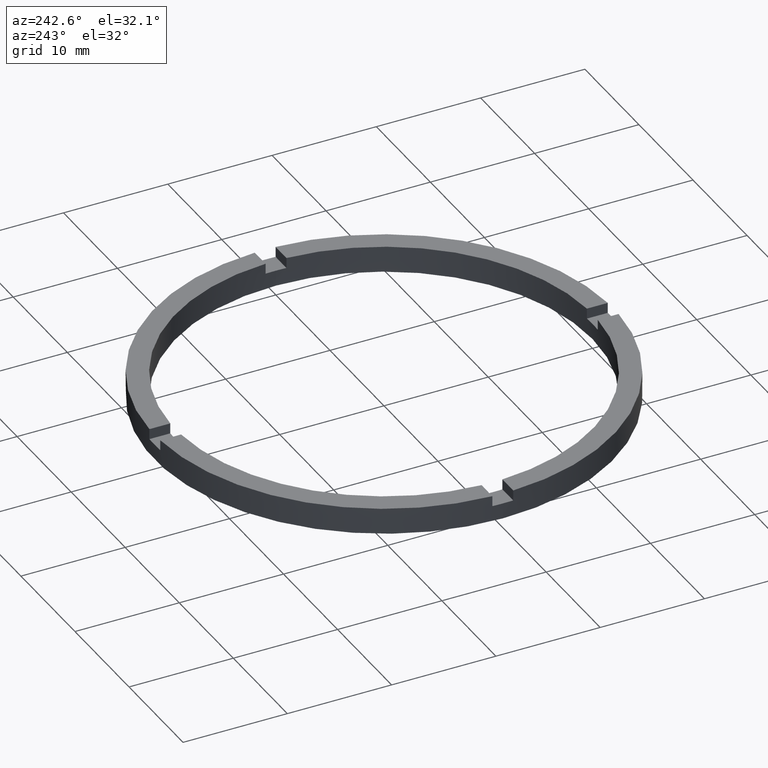
[diagram: clean part render]
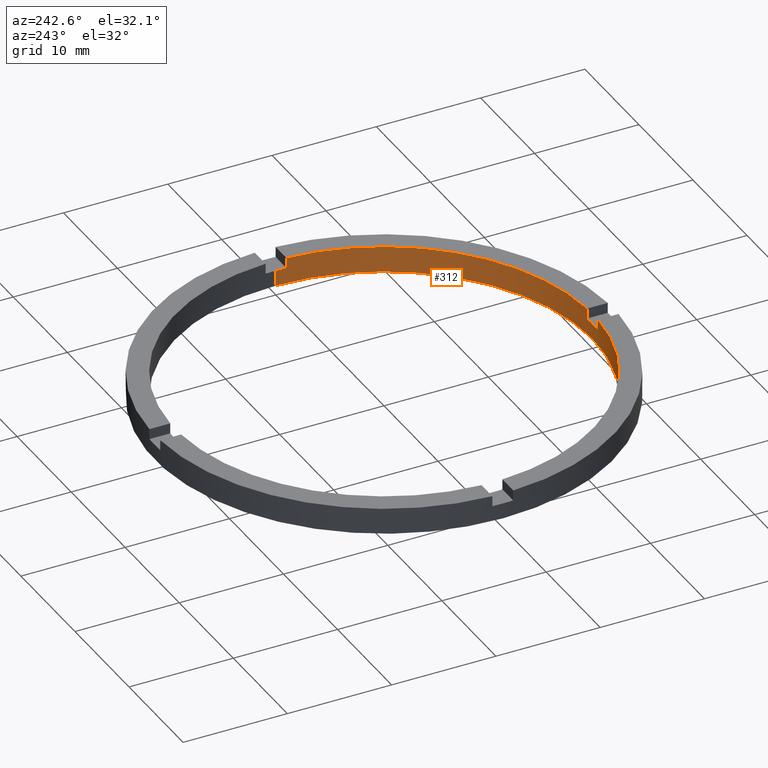
[diagram: same view with one face highlighted and labeled with its STEP entity id]
A machine part, auxiliary view. The second image highlights one B-rep face of the part: STEP entity #312.
In plain terms, the highlighted cylindrical surface (partial cylindrical patch) has radius 20 mm, axis along (-0, -0, -1).
Its self-contained STEP definition (entity closure, byte-faithful):
#16 = DIRECTION ( 'NONE',  ( 1.000000000000000000, 0.000000000000000000, 0.000000000000000000 ) ) ;
#19 = CARTESIAN_POINT ( 'NONE',  ( -1.000000000000161648, -19.97498435543817052, 2.500000000000000000 ) ) ;
#21 = CARTESIAN_POINT ( 'NONE',  ( 20.00000000000000000, 2.449293598294706513E-15, 1.500000000000000000 ) ) ;
#25 = CARTESIAN_POINT ( 'NONE',  ( 0.9999999999998384625, -19.97498435543818829, 1.500000000000000000 ) ) ;
#30 = AXIS2_PLACEMENT_3D ( 'NONE', #77, #321, #422 ) ;
#35 = EDGE_CURVE ( 'NONE', #464, #44, #719, .T. ) ;
#36 = LINE ( 'NONE', #280, #40 ) ;
#40 = VECTOR ( 'NONE', #569, 1000.000000000000000 ) ;
#42 = LINE ( 'NONE', #337, #320 ) ;
#44 = VERTEX_POINT ( 'NONE', #663 ) ;
#65 = VECTOR ( 'NONE', #662, 1000.000000000000000 ) ;
#77 = CARTESIAN_POINT ( 'NONE',  ( 0.000000000000000000, 0.000000000000000000, 2.500000000000000000 ) ) ;
#82 = CARTESIAN_POINT ( 'NONE',  ( 0.000000000000000000, 0.000000000000000000, 1.500000000000000000 ) ) ;
#88 = CARTESIAN_POINT ( 'NONE',  ( 0.000000000000000000, 0.000000000000000000, 1.500000000000000000 ) ) ;
#92 = AXIS2_PLACEMENT_3D ( 'NONE', #297, #105, #696 ) ;
#94 = CARTESIAN_POINT ( 'NONE',  ( -20.00000000000000000, 0.000000000000000000, 1.500000000000000000 ) ) ;
#95 = DIRECTION ( 'NONE',  ( 1.000000000000000000, 0.000000000000000000, 0.000000000000000000 ) ) ;
#98 = CARTESIAN_POINT ( 'NONE',  ( 0.000000000000000000, 0.000000000000000000, 1.500000000000000000 ) ) ;
#105 = DIRECTION ( 'NONE',  ( 0.000000000000000000, 0.000000000000000000, 1.000000000000000000 ) ) ;
#110 = CARTESIAN_POINT ( 'NONE',  ( 0.9999999999998384625, -19.97498435543818829, 2.500000000000000000 ) ) ;
#114 = AXIS2_PLACEMENT_3D ( 'NONE', #98, #625, #522 ) ;
#129 = EDGE_CURVE ( 'NONE', #430, #186, #235, .T. ) ;
#137 = EDGE_CURVE ( 'NONE', #504, #435, #479, .T. ) ;
#141 = CARTESIAN_POINT ( 'NONE',  ( 19.97498435543817408, -1.000000000000158096, 2.500000000000000000 ) ) ;
#144 = EDGE_CURVE ( 'NONE', #504, #181, #724, .T. ) ;
#145 = DIRECTION ( 'NONE',  ( -0.000000000000000000, -0.000000000000000000, -1.000000000000000000 ) ) ;
#160 = ORIENTED_EDGE ( 'NONE', *, *, #137, .T. ) ;
#173 = ORIENTED_EDGE ( 'NONE', *, *, #259, .T. ) ;
#175 = ORIENTED_EDGE ( 'NONE', *, *, #434, .F. ) ;
#181 = VERTEX_POINT ( 'NONE', #141 ) ;
#186 = VERTEX_POINT ( 'NONE', #357 ) ;
#193 = EDGE_CURVE ( 'NONE', #692, #186, #738, .T. ) ;
#194 = ORIENTED_EDGE ( 'NONE', *, *, #129, .T. ) ;
#195 = EDGE_LOOP ( 'NONE', ( #160, #698, #687, #440, #194, #727, #173, #175, #721, #743, #470, #702 ) ) ;
#196 = DIRECTION ( 'NONE',  ( 0.000000000000000000, 0.000000000000000000, 1.000000000000000000 ) ) ;
#206 = VECTOR ( 'NONE', #544, 1000.000000000000000 ) ;
#235 = CIRCLE ( 'NONE', #765, 20.00000000000000000 ) ;
#236 = CARTESIAN_POINT ( 'NONE',  ( -20.00000000000000000, 0.000000000000000000, 0.000000000000000000 ) ) ;
#240 = CYLINDRICAL_SURFACE ( 'NONE', #304, 20.00000000000000000 ) ;
#245 = FACE_OUTER_BOUND ( 'NONE', #195, .T. ) ;
#247 = VECTOR ( 'NONE', #250, 1000.000000000000000 ) ;
#250 = DIRECTION ( 'NONE',  ( -0.000000000000000000, -0.000000000000000000, -1.000000000000000000 ) ) ;
#253 = CARTESIAN_POINT ( 'NONE',  ( 0.000000000000000000, 0.000000000000000000, 2.500000000000000000 ) ) ;
#259 = EDGE_CURVE ( 'NONE', #692, #455, #505, .T. ) ;
#272 = AXIS2_PLACEMENT_3D ( 'NONE', #88, #196, #274 ) ;
#274 = DIRECTION ( 'NONE',  ( 1.000000000000000000, 0.000000000000000000, 0.000000000000000000 ) ) ;
#279 = EDGE_CURVE ( 'NONE', #777, #446, #760, .T. ) ;
#280 = CARTESIAN_POINT ( 'NONE',  ( -20.00000000000000000, 0.000000000000000000, 2.500000000000000000 ) ) ;
#287 = CARTESIAN_POINT ( 'NONE',  ( -1.000000000000161648, -19.97498435543817052, 2.500000000000000000 ) ) ;
#297 = CARTESIAN_POINT ( 'NONE',  ( 0.000000000000000000, 0.000000000000000000, 2.500000000000000000 ) ) ;
#304 = AXIS2_PLACEMENT_3D ( 'NONE', #253, #695, #368 ) ;
#312 = ADVANCED_FACE ( 'NONE', ( #245 ), #240, .F. ) ;
#320 = VECTOR ( 'NONE', #530, 1000.000000000000000 ) ;
#321 = DIRECTION ( 'NONE',  ( 0.000000000000000000, 0.000000000000000000, 1.000000000000000000 ) ) ;
#337 = CARTESIAN_POINT ( 'NONE',  ( 20.00000000000000000, 2.449293598294706513E-15, 2.500000000000000000 ) ) ;
#357 = CARTESIAN_POINT ( 'NONE',  ( -19.97498435543818118, -1.000000000000024647, 1.500000000000000000 ) ) ;
#368 = DIRECTION ( 'NONE',  ( -1.000000000000000000, 0.000000000000000000, 0.000000000000000000 ) ) ;
#388 = CARTESIAN_POINT ( 'NONE',  ( -19.97498435543818118, -1.000000000000024647, 2.500000000000000000 ) ) ;
#390 = CARTESIAN_POINT ( 'NONE',  ( 0.000000000000000000, 0.000000000000000000, 0.000000000000000000 ) ) ;
#396 = CARTESIAN_POINT ( 'NONE',  ( -19.97498435543818118, -1.000000000000024647, 2.500000000000000000 ) ) ;
#407 = EDGE_CURVE ( 'NONE', #435, #44, #42, .T. ) ;
#415 = EDGE_CURVE ( 'NONE', #430, #464, #36, .T. ) ;
#422 = DIRECTION ( 'NONE',  ( 1.000000000000000000, 0.000000000000000000, 0.000000000000000000 ) ) ;
#430 = VERTEX_POINT ( 'NONE', #94 ) ;
#434 = EDGE_CURVE ( 'NONE', #459, #455, #567, .T. ) ;
#435 = VERTEX_POINT ( 'NONE', #21 ) ;
#440 = ORIENTED_EDGE ( 'NONE', *, *, #415, .F. ) ;
#446 = VERTEX_POINT ( 'NONE', #25 ) ;
#455 = VERTEX_POINT ( 'NONE', #287 ) ;
#459 = VERTEX_POINT ( 'NONE', #771 ) ;
#464 = VERTEX_POINT ( 'NONE', #236 ) ;
#470 = ORIENTED_EDGE ( 'NONE', *, *, #726, .T. ) ;
#479 = CIRCLE ( 'NONE', #272, 20.00000000000000000 ) ;
#495 = VECTOR ( 'NONE', #145, 1000.000000000000000 ) ;
#497 = CARTESIAN_POINT ( 'NONE',  ( 19.97498435543817408, -1.000000000000158096, 2.500000000000000000 ) ) ;
#504 = VERTEX_POINT ( 'NONE', #589 ) ;
#505 = CIRCLE ( 'NONE', #30, 20.00000000000000000 ) ;
#522 = DIRECTION ( 'NONE',  ( 1.000000000000000000, 0.000000000000000000, 0.000000000000000000 ) ) ;
#530 = DIRECTION ( 'NONE',  ( -0.000000000000000000, -0.000000000000000000, -1.000000000000000000 ) ) ;
#544 = DIRECTION ( 'NONE',  ( 0.000000000000000000, 0.000000000000000000, 1.000000000000000000 ) ) ;
#566 = DIRECTION ( 'NONE',  ( 0.000000000000000000, 0.000000000000000000, 1.000000000000000000 ) ) ;
#567 = LINE ( 'NONE', #19, #65 ) ;
#569 = DIRECTION ( 'NONE',  ( -0.000000000000000000, -0.000000000000000000, -1.000000000000000000 ) ) ;
#574 = CIRCLE ( 'NONE', #92, 20.00000000000000000 ) ;
#589 = CARTESIAN_POINT ( 'NONE',  ( 19.97498435543817408, -1.000000000000158096, 1.500000000000000000 ) ) ;
#593 = CIRCLE ( 'NONE', #114, 20.00000000000000000 ) ;
#602 = CARTESIAN_POINT ( 'NONE',  ( 0.9999999999998384625, -19.97498435543818829, 2.500000000000000000 ) ) ;
#625 = DIRECTION ( 'NONE',  ( -0.000000000000000000, 0.000000000000000000, 1.000000000000000000 ) ) ;
#637 = EDGE_CURVE ( 'NONE', #459, #446, #593, .T. ) ;
#654 = AXIS2_PLACEMENT_3D ( 'NONE', #390, #757, #95 ) ;
#662 = DIRECTION ( 'NONE',  ( 0.000000000000000000, 0.000000000000000000, 1.000000000000000000 ) ) ;
#663 = CARTESIAN_POINT ( 'NONE',  ( 20.00000000000000000, 2.449293598294706513E-15, 0.000000000000000000 ) ) ;
#687 = ORIENTED_EDGE ( 'NONE', *, *, #35, .F. ) ;
#692 = VERTEX_POINT ( 'NONE', #388 ) ;
#695 = DIRECTION ( 'NONE',  ( -0.000000000000000000, -0.000000000000000000, -1.000000000000000000 ) ) ;
#696 = DIRECTION ( 'NONE',  ( 1.000000000000000000, 0.000000000000000000, 0.000000000000000000 ) ) ;
#698 = ORIENTED_EDGE ( 'NONE', *, *, #407, .T. ) ;
#702 = ORIENTED_EDGE ( 'NONE', *, *, #144, .F. ) ;
#719 = CIRCLE ( 'NONE', #654, 20.00000000000000000 ) ;
#721 = ORIENTED_EDGE ( 'NONE', *, *, #637, .T. ) ;
#724 = LINE ( 'NONE', #497, #206 ) ;
#726 = EDGE_CURVE ( 'NONE', #777, #181, #574, .T. ) ;
#727 = ORIENTED_EDGE ( 'NONE', *, *, #193, .F. ) ;
#738 = LINE ( 'NONE', #396, #495 ) ;
#743 = ORIENTED_EDGE ( 'NONE', *, *, #279, .F. ) ;
#757 = DIRECTION ( 'NONE',  ( 0.000000000000000000, 0.000000000000000000, 1.000000000000000000 ) ) ;
#760 = LINE ( 'NONE', #602, #247 ) ;
#765 = AXIS2_PLACEMENT_3D ( 'NONE', #82, #566, #16 ) ;
#771 = CARTESIAN_POINT ( 'NONE',  ( -1.000000000000161648, -19.97498435543817052, 1.500000000000000000 ) ) ;
#777 = VERTEX_POINT ( 'NONE', #110 ) ;